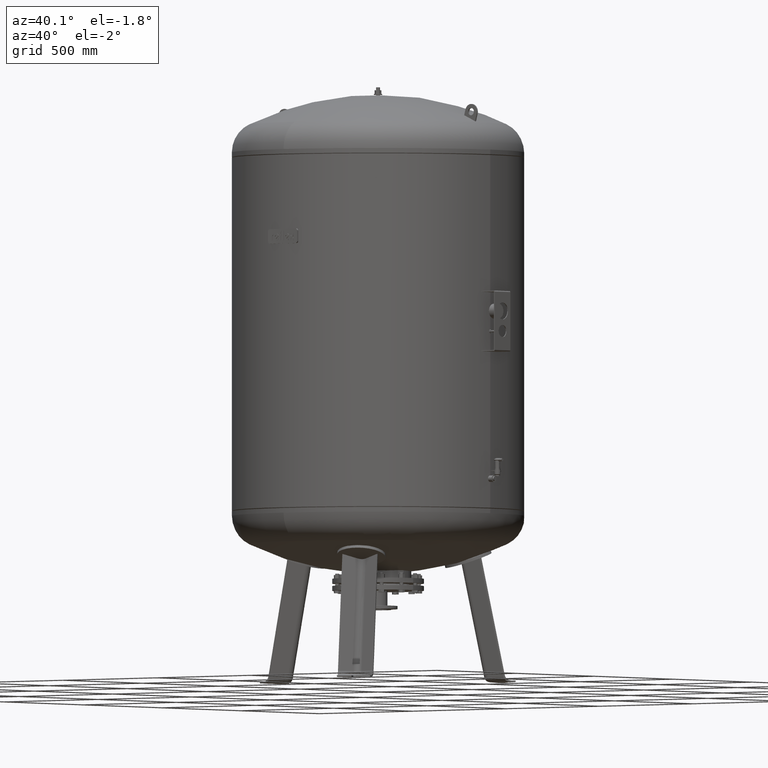
[diagram: clean part render]
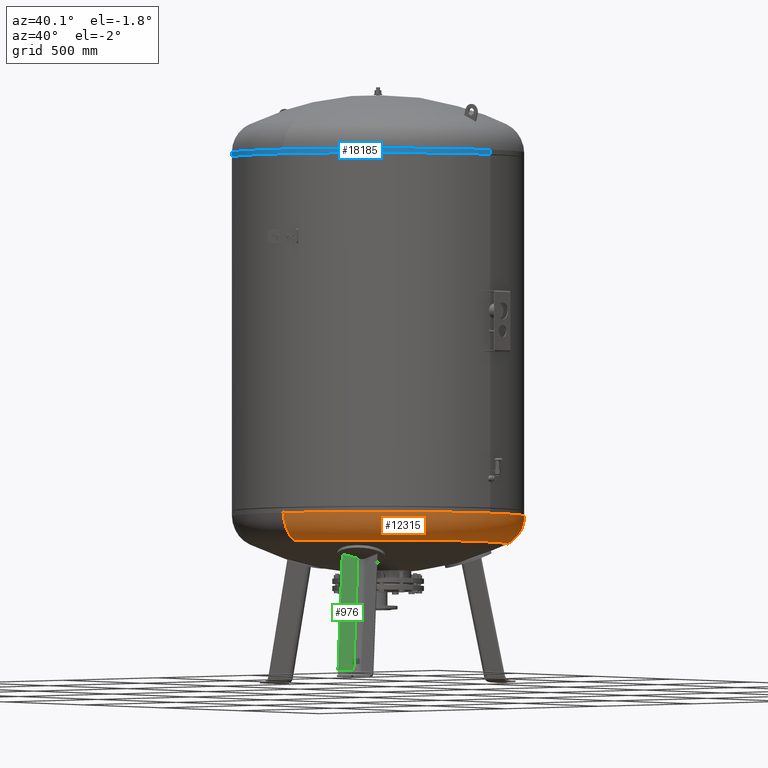
[diagram: same view with three faces highlighted in distinct colors, each labeled with its STEP entity id]
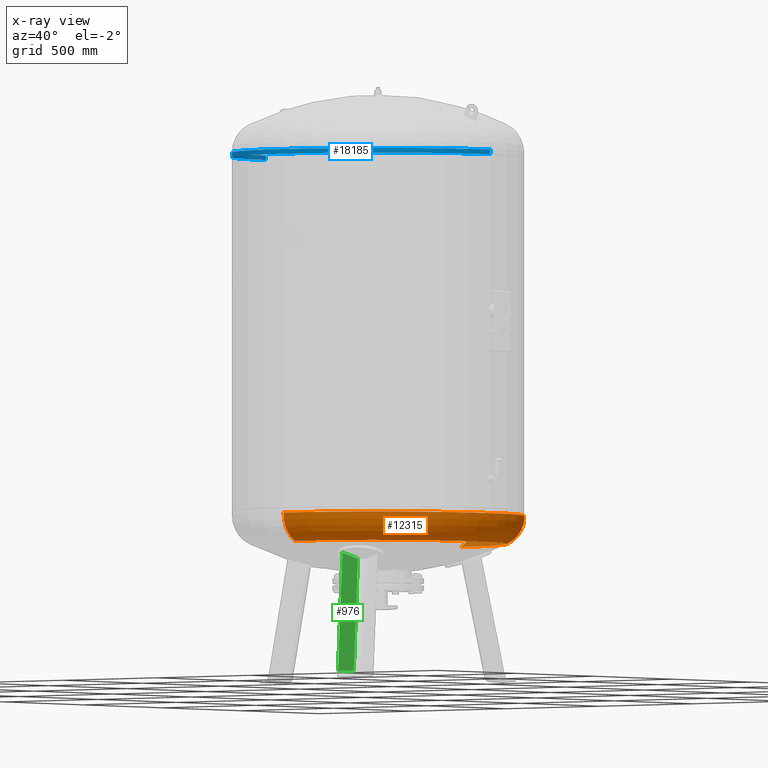
[diagram: x-ray of the same camera — body ghosted, the three highlighted faces saturated]
A machine part, auxiliary view with three faces highlighted in distinct colors.
The next image is the same camera in x-ray (body ghosted, the three faces saturated) — at least one of them is partly hidden behind the body in this view.
Their STEP definitions:

[orange] entity #12315 — the highlighted toroidal blend (fillet) surface has major radius 473 mm and minor (blend) radius 127 mm.
#12201=CARTESIAN_POINT('',(599.999999999999890,3.010780E-014,675.087542566272300));
#12202=VERTEX_POINT('',#12201);
#12209=CARTESIAN_POINT('',(-1.445307E-013,600.0,675.087542566272420));
#12210=VERTEX_POINT('',#12209);
#12211=CARTESIAN_POINT('',(-3.551733E-014,-4.336858E-014,675.087542566272300));
#12212=DIRECTION('',(0.0,0.0,1.0));
#12213=DIRECTION('',(-1.0,0.0,0.0));
#12214=AXIS2_PLACEMENT_3D('',#12211,#12212,#12213);
#12215=CIRCLE('',#12214,600.0);
#12216=EDGE_CURVE('',#12202,#12210,#12215,.T.);
#12233=CARTESIAN_POINT('',(-7.105427E-014,-600.0,675.087542566272190));
#12234=VERTEX_POINT('',#12233);
#12235=CARTESIAN_POINT('',(-5.387807E-014,-528.621296296296240,560.915429516194880));
#12236=VERTEX_POINT('',#12235);
#12237=CARTESIAN_POINT('',(-7.105427E-014,-472.999999999999940,675.087542566272190));
#12238=DIRECTION('',(1.0,0.0,0.0));
#12239=DIRECTION('',(0.0,-1.0,0.0));
#12240=AXIS2_PLACEMENT_3D('',#12237,#12238,#12239);
#12241=CIRCLE('',#12240,127.000000000000010);
#12242=EDGE_CURVE('',#12234,#12236,#12241,.T.);
#12252=CARTESIAN_POINT('',(-1.186134E-013,528.621296296296240,560.915429516195100));
#12253=VERTEX_POINT('',#12252);
#12254=CARTESIAN_POINT('',(-1.289782E-013,472.999999999999830,675.087542566272420));
#12255=DIRECTION('',(-1.0,0.0,0.0));
#12256=DIRECTION('',(0.0,1.0,0.0));
#12257=AXIS2_PLACEMENT_3D('',#12254,#12255,#12256);
#12258=CIRCLE('',#12257,127.000000000000010);
#12259=EDGE_CURVE('',#12210,#12253,#12258,.T.);
#12287=CARTESIAN_POINT('',(-1.834112E-014,-2.239550E-014,560.915429516194990));
#12288=DIRECTION('',(0.0,0.0,1.0));
#12289=DIRECTION('',(-1.0,0.0,0.0));
#12290=AXIS2_PLACEMENT_3D('',#12287,#12288,#12289);
#12291=CIRCLE('',#12290,528.621296296296240);
#12292=EDGE_CURVE('',#12236,#12253,#12291,.T.);
#12297=CARTESIAN_POINT('',(-7.105427E-014,-4.336858E-014,675.087542566272300));
#12298=DIRECTION('',(-1.504413E-016,-1.836970E-016,1.0));
#12299=DIRECTION('',(0.0,-1.0,0.0));
#12300=AXIS2_PLACEMENT_3D('',#12297,#12298,#12299);
#12301=TOROIDAL_SURFACE('',#12300,472.999999999999890,127.000000000000010);
#12302=ORIENTED_EDGE('',*,*,#12242,.T.);
#12303=ORIENTED_EDGE('',*,*,#12292,.T.);
#12304=ORIENTED_EDGE('',*,*,#12259,.F.);
#12305=ORIENTED_EDGE('',*,*,#12216,.F.);
#12306=CARTESIAN_POINT('',(-3.551733E-014,-4.336858E-014,675.087542566272300));
#12307=DIRECTION('',(0.0,0.0,1.0));
#12308=DIRECTION('',(-1.0,0.0,0.0));
#12309=AXIS2_PLACEMENT_3D('',#12306,#12307,#12308);
#12310=CIRCLE('',#12309,600.0);
#12311=EDGE_CURVE('',#12234,#12202,#12310,.T.);
#12312=ORIENTED_EDGE('',*,*,#12311,.F.);
#12313=EDGE_LOOP('',(#12302,#12303,#12304,#12305,#12312));
#12314=FACE_OUTER_BOUND('',#12313,.T.);
#12315=ADVANCED_FACE('',(#12314),#12301,.T.);

[blue] entity #18185 — the highlighted cylindrical surface (partial cylindrical patch) has radius 600 mm, axis along (0, -0, -1).
#17526=CARTESIAN_POINT('',(600.000000000000110,-4.684274E-014,2144.0));
#17527=VERTEX_POINT('',#17526);
#17528=CARTESIAN_POINT('',(600.0,-4.336858E-014,2162.912457433727900));
#17529=VERTEX_POINT('',#17528);
#17530=CARTESIAN_POINT('',(600.000000000000110,-4.684274E-014,2144.0));
#17531=DIRECTION('',(0.0,0.0,1.0));
#17532=VECTOR('',#17531,18.912457433727923);
#17533=LINE('',#17530,#17532);
#17534=EDGE_CURVE('',#17527,#17529,#17533,.T.);
#17536=CARTESIAN_POINT('',(-599.999999999999890,2.663364E-014,2144.0));
#17537=VERTEX_POINT('',#17536);
#17545=CARTESIAN_POINT('',(-599.999999999999890,3.010780E-014,2162.912457433727500));
#17546=VERTEX_POINT('',#17545);
#17547=CARTESIAN_POINT('',(-599.999999999999890,2.663364E-014,2144.0));
#17548=DIRECTION('',(0.0,0.0,1.0));
#17549=VECTOR('',#17548,18.912457433727468);
#17550=LINE('',#17547,#17549);
#17551=EDGE_CURVE('',#17537,#17546,#17550,.T.);
#17577=CARTESIAN_POINT('',(4.214189E-014,-600.0,2162.912457433727500));
#17578=VERTEX_POINT('',#17577);
#17588=CARTESIAN_POINT('',(6.604942E-015,-4.336858E-014,2162.912457433727500));
#17589=DIRECTION('',(0.0,0.0,-1.0));
#17590=DIRECTION('',(1.0,0.0,0.0));
#17591=AXIS2_PLACEMENT_3D('',#17588,#17589,#17590);
#17592=CIRCLE('',#17591,600.0);
#17593=EDGE_CURVE('',#17529,#17578,#17592,.T.);
#18157=CARTESIAN_POINT('',(6.604942E-015,-4.336858E-014,2162.912457433727500));
#18158=DIRECTION('',(0.0,0.0,-1.0));
#18159=DIRECTION('',(1.0,0.0,0.0));
#18160=AXIS2_PLACEMENT_3D('',#18157,#18158,#18159);
#18161=CIRCLE('',#18160,600.0);
#18162=EDGE_CURVE('',#17578,#17546,#18161,.T.);
#18167=CARTESIAN_POINT('',(6.869496E-015,-4.510566E-014,2153.456228716863700));
#18168=DIRECTION('',(2.797667E-017,-1.836970E-016,-1.0));
#18169=DIRECTION('',(1.0,0.0,0.0));
#18170=AXIS2_PLACEMENT_3D('',#18167,#18168,#18169);
#18171=CYLINDRICAL_SURFACE('',#18170,599.999999999999890);
#18172=ORIENTED_EDGE('',*,*,#17534,.T.);
#18173=ORIENTED_EDGE('',*,*,#17593,.T.);
#18174=ORIENTED_EDGE('',*,*,#18162,.T.);
#18175=ORIENTED_EDGE('',*,*,#17551,.F.);
#18176=CARTESIAN_POINT('',(7.134050E-015,-4.684274E-014,2144.0));
#18177=DIRECTION('',(0.0,0.0,-1.0));
#18178=DIRECTION('',(1.0,0.0,0.0));
#18179=AXIS2_PLACEMENT_3D('',#18176,#18177,#18178);
#18180=CIRCLE('',#18179,600.0);
#18181=EDGE_CURVE('',#17527,#17537,#18180,.T.);
#18182=ORIENTED_EDGE('',*,*,#18181,.F.);
#18183=EDGE_LOOP('',(#18172,#18173,#18174,#18175,#18182));
#18184=FACE_OUTER_BOUND('',#18183,.T.);
#18185=ADVANCED_FACE('',(#18184),#18171,.T.);

[green] entity #976 — the highlighted planar face has unit normal (0.9325, -0.3243, 0.1588).
#171=CARTESIAN_POINT('',(224.087779953756690,-420.404321888330510,27.029948423057292));
#172=VERTEX_POINT('',#171);
#504=CARTESIAN_POINT('',(199.476382368575970,-491.178961512120450,27.029948423057292));
#505=VERTEX_POINT('',#504);
#506=CARTESIAN_POINT('',(224.087779953756690,-420.404321888330510,27.029948423057292));
#507=DIRECTION('',(-0.328450760190053,-0.944521094592692,0.0));
#508=VECTOR('',#507,74.931772333057609);
#509=LINE('',#506,#508);
#510=EDGE_CURVE('',#172,#505,#509,.T.);
#744=CARTESIAN_POINT('',(174.868180275707030,-335.153474517747780,490.149969666713050));
#745=VERTEX_POINT('',#744);
#826=CARTESIAN_POINT('',(147.738648822298610,-401.566578341507350,513.843746499035890));
#827=VERTEX_POINT('',#826);
#835=CARTESIAN_POINT('',(174.868180275707030,-335.153474517747780,490.149969666713050));
#836=CARTESIAN_POINT('',(174.063724671583090,-337.170563917013740,490.754973838816740));
#837=CARTESIAN_POINT('',(173.256998726222890,-339.188319362818850,491.371950061965720));
#838=CARTESIAN_POINT('',(169.718876641487160,-348.016886137951360,494.120476420435750));
#839=CARTESIAN_POINT('',(166.965157497031270,-354.834375176735990,496.369477981931770));
#840=CARTESIAN_POINT('',(158.772604064554740,-374.974960874877180,503.350498082422460));
#841=CARTESIAN_POINT('',(153.278110662734410,-388.300884073294010,508.403592446425990));
#842=CARTESIAN_POINT('',(147.738648822298610,-401.566578341507350,513.843746499035890));
#843=B_SPLINE_CURVE_WITH_KNOTS('',3,(#835,#836,#837,#838,#839,#840,#841,#842),.UNSPECIFIED.,.F.,.U.,(4,2,2,4),(5.937335443723129,6.588195328792665,8.784260438390220,13.073486937020286),.UNSPECIFIED.);
#844=EDGE_CURVE('',#745,#827,#843,.T.);
#949=CARTESIAN_POINT('',(174.868180275707030,-335.153474517747780,490.149969666713050));
#950=DIRECTION('',(0.103955845408880,-0.180056805991956,-0.978147600733806));
#951=VECTOR('',#950,473.466398012144050);
#952=LINE('',#949,#951);
#953=EDGE_CURVE('',#745,#172,#952,.T.);
#960=CARTESIAN_POINT('',(238.377993293609310,-412.882795790844740,-41.527282742766886));
#961=DIRECTION('',(0.932535537409927,-0.324282864533177,0.158802063077708));
#962=DIRECTION('',(-0.103955845408880,0.180056805991956,0.978147600733806));
#963=AXIS2_PLACEMENT_3D('',#960,#961,#962);
#964=PLANE('',#963);
#965=ORIENTED_EDGE('',*,*,#953,.F.);
#966=ORIENTED_EDGE('',*,*,#844,.T.);
#967=CARTESIAN_POINT('',(199.476382368575970,-491.178961512120450,27.029948423057292));
#968=DIRECTION('',(-0.103955845408880,0.180056805991956,0.978147600733806));
#969=VECTOR('',#968,497.689507913500220);
#970=LINE('',#967,#969);
#971=EDGE_CURVE('',#505,#827,#970,.T.);
#972=ORIENTED_EDGE('',*,*,#971,.F.);
#973=ORIENTED_EDGE('',*,*,#510,.F.);
#974=EDGE_LOOP('',(#965,#966,#972,#973));
#975=FACE_OUTER_BOUND('',#974,.T.);
#976=ADVANCED_FACE('',(#975),#964,.T.);